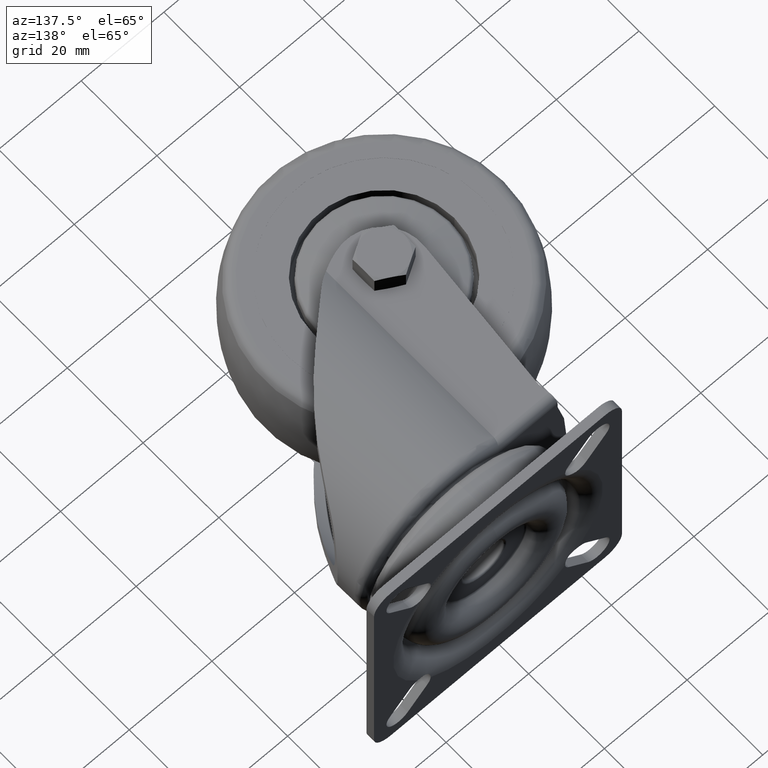
[diagram: clean part render]
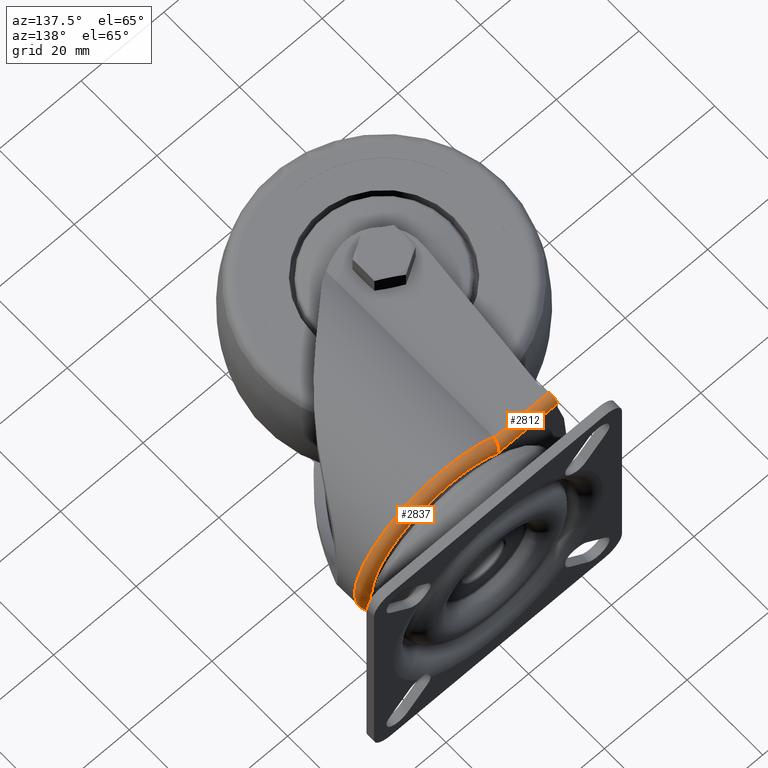
[diagram: same view with one multi-face feature highlighted, each face labeled with its STEP entity id]
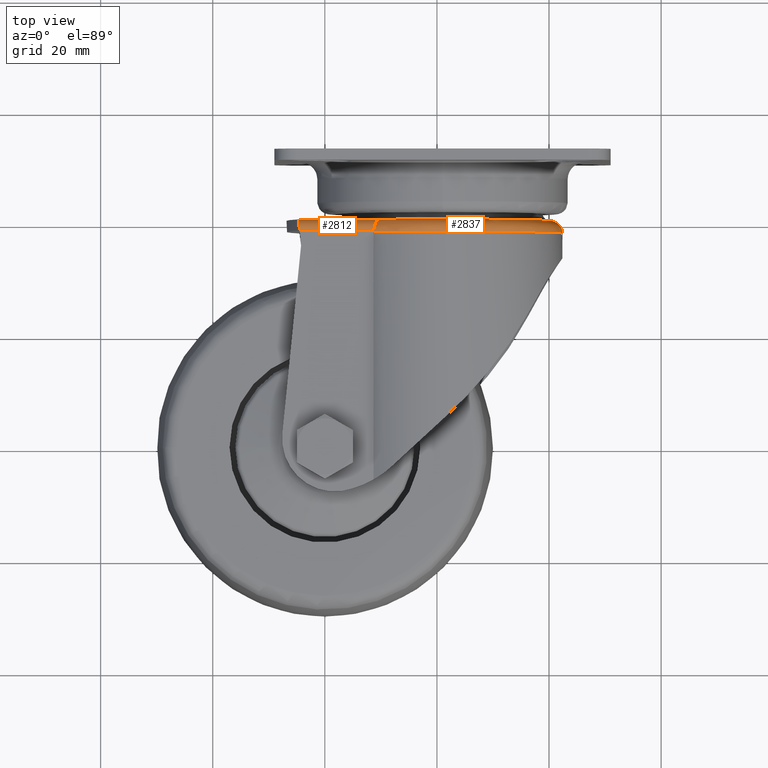
[diagram: same view with one multi-face feature highlighted, each face labeled with its STEP entity id]
A machine part, auxiliary view. The highlighted faces form ONE feature: a constant-radius fillet chain: 2 tangent blend faces with common blend radius 2.105 mm. The faces share edges in the B-rep.
A second angle (top view) of the same feature is appended — it is thin or edge-on in the first view.
Their STEP definitions:
[1] entity #2812 (Cylinder):
#51=B_SPLINE_CURVE_WITH_KNOTS('',3,(#5094,#5095,#5096,#5097,#5098,#5099,
#5100,#5101,#5102,#5103,#5104,#5105),.UNSPECIFIED.,.F.,.F.,(4,2,2,2,2,4),
(2.58119617354285,2.72357354351816,2.88131990593286,3.04704225538063,3.22409500734606,
3.22544010682588),.UNSPECIFIED.);
#74=ELLIPSE('',#3301,2.01583934746807,2.);
#215=LINE('',#5092,#346);
#216=LINE('',#5106,#347);
#346=VECTOR('',#3980,1000.);
#347=VECTOR('',#3981,1000.);
#441=CYLINDRICAL_SURFACE('',#3300,2.);
#675=FACE_OUTER_BOUND('',#874,.T.);
#874=EDGE_LOOP('',(#2283,#2284,#2285,#2286));
#1344=VERTEX_POINT('',#5088);
#1345=VERTEX_POINT('',#5089);
#1346=VERTEX_POINT('',#5091);
#1347=VERTEX_POINT('',#5093);
#1682=EDGE_CURVE('',#1344,#1345,#74,.T.);
#1683=EDGE_CURVE('',#1346,#1344,#215,.T.);
#1684=EDGE_CURVE('',#1346,#1347,#51,.T.);
#1685=EDGE_CURVE('',#1347,#1345,#216,.T.);
#2283=ORIENTED_EDGE('',*,*,#1682,.F.);
#2284=ORIENTED_EDGE('',*,*,#1683,.F.);
#2285=ORIENTED_EDGE('',*,*,#1684,.T.);
#2286=ORIENTED_EDGE('',*,*,#1685,.T.);
#2812=ADVANCED_FACE('',(#675),#441,.T.);
#3300=AXIS2_PLACEMENT_3D('',#5087,#3976,#3977);
#3301=AXIS2_PLACEMENT_3D('',#5090,#3978,#3979);
#3976=DIRECTION('center_axis',(-1.,0.,0.));
#3977=DIRECTION('ref_axis',(0.,0.,1.));
#3978=DIRECTION('center_axis',(-0.99214255466937,-0.12511255418277,0.));
#3979=DIRECTION('ref_axis',(-0.12511255418277,0.99214255466937,0.));
#3980=DIRECTION('',(-1.,0.,0.));
#3981=DIRECTION('',(-1.,0.,0.));
#5087=CARTESIAN_POINT('Origin',(21.,38.62,15.5));
#5088=CARTESIAN_POINT('',(-4.5098738965952,38.62,17.5));
#5089=CARTESIAN_POINT('',(-4.76208070617906,40.62,15.5));
#5090=CARTESIAN_POINT('Origin',(-4.5098738965952,38.62,15.5));
#5091=CARTESIAN_POINT('',(8.70032114240029,38.6199999999791,17.5));
#5092=CARTESIAN_POINT('',(21.,38.62,17.5));
#5093=CARTESIAN_POINT('',(9.68602191976667,40.62,15.5));
#5094=CARTESIAN_POINT('Ctrl Pts',(8.70032114240032,38.6199999999791,17.5));
#5095=CARTESIAN_POINT('Ctrl Pts',(8.74015540773197,38.8599623937209,17.5000000000025));
#5096=CARTESIAN_POINT('Ctrl Pts',(8.78717812901823,39.096337057153,17.4568704147919));
#5097=CARTESIAN_POINT('Ctrl Pts',(8.90611471830791,39.5647474503821,17.2822704129567));
#5098=CARTESIAN_POINT('Ctrl Pts',(8.97863626818299,39.7877471179789,17.1439761896534));
#5099=CARTESIAN_POINT('Ctrl Pts',(9.14721236570709,40.175611202673,16.7857830038805));
#5100=CARTESIAN_POINT('Ctrl Pts',(9.2424926241386,40.332997665342,16.5658412644659));
#5101=CARTESIAN_POINT('Ctrl Pts',(9.45307917343959,40.5591022763343,16.0658740893099));
#5102=CARTESIAN_POINT('Ctrl Pts',(9.56746638170158,40.6190918173206,15.7871053674124));
#5103=CARTESIAN_POINT('Ctrl Pts',(9.68426058355371,40.6199965891246,15.5042651432583));
#5104=CARTESIAN_POINT('Ctrl Pts',(9.68514123462509,40.62,15.5021325650111));
#5105=CARTESIAN_POINT('Ctrl Pts',(9.68602191976667,40.62,15.5));
#5106=CARTESIAN_POINT('',(21.,40.62,15.5));
[2] entity #2837 (Torus):
#50=B_SPLINE_CURVE_WITH_KNOTS('',3,(#5072,#5073,#5074,#5075,#5076,#5077,
#5078,#5079,#5080,#5081,#5082,#5083,#5084,#5085),.UNSPECIFIED.,.F.,.F.,
(4,2,2,2,2,2,4),(-0.000692177423836237,0.,0.0545029544531267,0.108732220989267,
0.193070125248476,0.2735553545042,0.330579686054238),.UNSPECIFIED.);
#51=B_SPLINE_CURVE_WITH_KNOTS('',3,(#5094,#5095,#5096,#5097,#5098,#5099,
#5100,#5101,#5102,#5103,#5104,#5105),.UNSPECIFIED.,.F.,.F.,(4,2,2,2,2,4),
(2.58119617354285,2.72357354351816,2.88131990593286,3.04704225538063,3.22409500734606,
3.22544010682588),.UNSPECIFIED.);
#56=B_SPLINE_CURVE_WITH_KNOTS('',3,(#5353,#5354,#5355,#5356),
 .UNSPECIFIED.,.F.,.F.,(4,4),(1.23447664138758,1.25475526942362),
 .UNSPECIFIED.);
#57=B_SPLINE_CURVE_WITH_KNOTS('',3,(#5362,#5363,#5364,#5365),
 .UNSPECIFIED.,.F.,.F.,(4,4),(3.76426580827087,3.78454443630494),
 .UNSPECIFIED.);
#152=TOROIDAL_SURFACE('',#3375,19.19,2.20999999999998);
#700=FACE_OUTER_BOUND('',#904,.T.);
#904=EDGE_LOOP('',(#2426,#2427,#2428,#2429,#2430,#2431));
#1062=CIRCLE('',#3298,21.4);
#1063=CIRCLE('',#3303,19.19);
#1339=VERTEX_POINT('',#5048);
#1340=VERTEX_POINT('',#5050);
#1342=VERTEX_POINT('',#5069);
#1343=VERTEX_POINT('',#5071);
#1346=VERTEX_POINT('',#5091);
#1347=VERTEX_POINT('',#5093);
#1675=EDGE_CURVE('',#1339,#1340,#1062,.T.);
#1680=EDGE_CURVE('',#1342,#1343,#50,.T.);
#1684=EDGE_CURVE('',#1346,#1347,#51,.T.);
#1686=EDGE_CURVE('',#1342,#1347,#1063,.T.);
#1766=EDGE_CURVE('',#1343,#1339,#56,.T.);
#1769=EDGE_CURVE('',#1340,#1346,#57,.T.);
#2426=ORIENTED_EDGE('',*,*,#1684,.F.);
#2427=ORIENTED_EDGE('',*,*,#1769,.F.);
#2428=ORIENTED_EDGE('',*,*,#1675,.F.);
#2429=ORIENTED_EDGE('',*,*,#1766,.F.);
#2430=ORIENTED_EDGE('',*,*,#1680,.F.);
#2431=ORIENTED_EDGE('',*,*,#1686,.T.);
#2837=ADVANCED_FACE('',(#700),#152,.T.);
#3298=AXIS2_PLACEMENT_3D('',#5051,#3969,#3970);
#3303=AXIS2_PLACEMENT_3D('',#5108,#3984,#3985);
#3375=AXIS2_PLACEMENT_3D('',#5371,#4160,#4161);
#3969=DIRECTION('center_axis',(0.,-1.,0.));
#3970=DIRECTION('ref_axis',(0.,0.,-1.));
#3984=DIRECTION('center_axis',(0.,-1.,0.));
#3985=DIRECTION('ref_axis',(0.,0.,-1.));
#4160=DIRECTION('center_axis',(0.,-1.,0.));
#4161=DIRECTION('ref_axis',(1.,0.,1.83697019872103E-16));
#5048=CARTESIAN_POINT('',(8.68293866216459,38.41,-17.5));
#5050=CARTESIAN_POINT('',(8.68293866216459,38.41,17.5));
#5051=CARTESIAN_POINT('Origin',(21.,38.41,0.));
#5069=CARTESIAN_POINT('',(9.68602191976668,40.62,-15.5));
#5071=CARTESIAN_POINT('',(8.70032114240376,38.62,-17.5));
#5072=CARTESIAN_POINT('Ctrl Pts',(9.68602191976666,40.62,-15.5));
#5073=CARTESIAN_POINT('Ctrl Pts',(9.68514123462509,40.62,-15.5021325650111));
#5074=CARTESIAN_POINT('Ctrl Pts',(9.68426058355371,40.6199965891246,-15.5042651432582));
#5075=CARTESIAN_POINT('Ctrl Pts',(9.61403919491731,40.6194526037942,-15.6743201030712));
#5076=CARTESIAN_POINT('Ctrl Pts',(9.54510261569674,40.5977679953325,-15.8418543601228));
#5077=CARTESIAN_POINT('Ctrl Pts',(9.41020685490614,40.5128310031696,-16.1673354680057));
#5078=CARTESIAN_POINT('Ctrl Pts',(9.34459868767756,40.4500143895366,-16.3244530397344));
#5079=CARTESIAN_POINT('Ctrl Pts',(9.18324415857936,40.2396320519977,-16.7025592648057));
#5080=CARTESIAN_POINT('Ctrl Pts',(9.09236396378296,40.0660828443105,-16.9075068021465));
#5081=CARTESIAN_POINT('Ctrl Pts',(8.93301611054873,39.652872486163,-17.2317496704219));
#5082=CARTESIAN_POINT('Ctrl Pts',(8.86530999955179,39.4205943471383,-17.3513359638589));
#5083=CARTESIAN_POINT('Ctrl Pts',(8.76653853774808,38.9909455711935,-17.474014441598));
#5084=CARTESIAN_POINT('Ctrl Pts',(8.73123106846317,38.8062019993529,-17.5));
#5085=CARTESIAN_POINT('Ctrl Pts',(8.70032114240379,38.62,-17.5));
#5091=CARTESIAN_POINT('',(8.70032114240029,38.6199999999791,17.5));
#5093=CARTESIAN_POINT('',(9.68602191976667,40.62,15.5));
#5094=CARTESIAN_POINT('Ctrl Pts',(8.70032114240032,38.6199999999791,17.5));
#5095=CARTESIAN_POINT('Ctrl Pts',(8.74015540773197,38.8599623937209,17.5000000000025));
#5096=CARTESIAN_POINT('Ctrl Pts',(8.78717812901823,39.096337057153,17.4568704147919));
#5097=CARTESIAN_POINT('Ctrl Pts',(8.90611471830791,39.5647474503821,17.2822704129567));
#5098=CARTESIAN_POINT('Ctrl Pts',(8.97863626818299,39.7877471179789,17.1439761896534));
#5099=CARTESIAN_POINT('Ctrl Pts',(9.14721236570709,40.175611202673,16.7857830038805));
#5100=CARTESIAN_POINT('Ctrl Pts',(9.2424926241386,40.332997665342,16.5658412644659));
#5101=CARTESIAN_POINT('Ctrl Pts',(9.45307917343959,40.5591022763343,16.0658740893099));
#5102=CARTESIAN_POINT('Ctrl Pts',(9.56746638170158,40.6190918173206,15.7871053674124));
#5103=CARTESIAN_POINT('Ctrl Pts',(9.68426058355371,40.6199965891246,15.5042651432583));
#5104=CARTESIAN_POINT('Ctrl Pts',(9.68514123462509,40.62,15.5021325650111));
#5105=CARTESIAN_POINT('Ctrl Pts',(9.68602191976667,40.62,15.5));
#5108=CARTESIAN_POINT('Origin',(21.,40.62,0.));
#5353=CARTESIAN_POINT('Ctrl Pts',(8.70032114240379,38.62,-17.5));
#5354=CARTESIAN_POINT('Ctrl Pts',(8.68847500443447,38.5486386330961,-17.5));
#5355=CARTESIAN_POINT('Ctrl Pts',(8.68293866216461,38.4775954267868,-17.5));
#5356=CARTESIAN_POINT('Ctrl Pts',(8.68293866216461,38.41,-17.5));
#5362=CARTESIAN_POINT('Ctrl Pts',(8.68293866216461,38.41,17.5));
#5363=CARTESIAN_POINT('Ctrl Pts',(8.68293866216461,38.4775954267802,17.5));
#5364=CARTESIAN_POINT('Ctrl Pts',(8.68847500443336,38.5486386330822,17.5));
#5365=CARTESIAN_POINT('Ctrl Pts',(8.70032114240032,38.6199999999791,17.5));
#5371=CARTESIAN_POINT('Origin',(21.,38.41,0.));